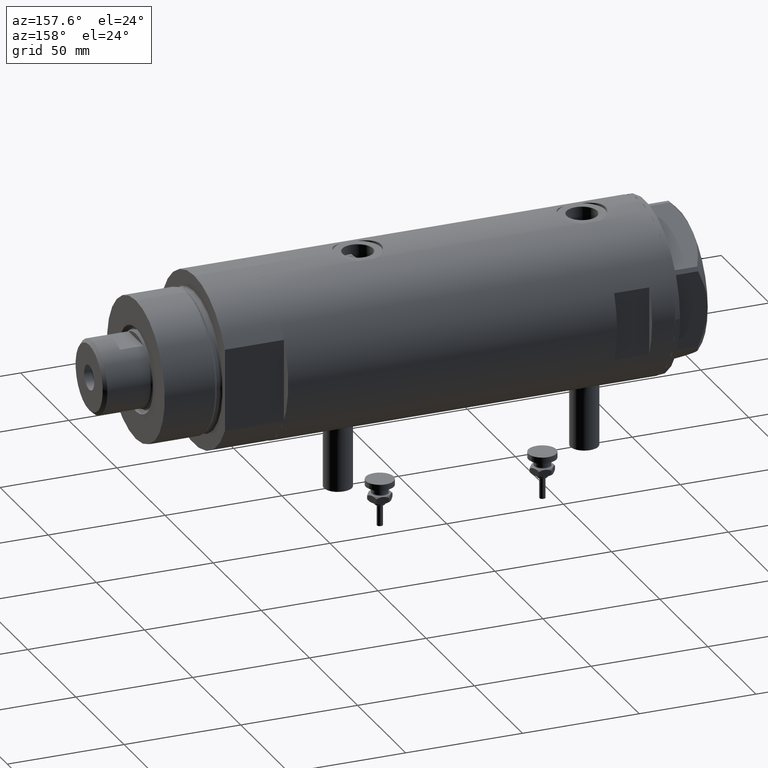
[diagram: clean part render]
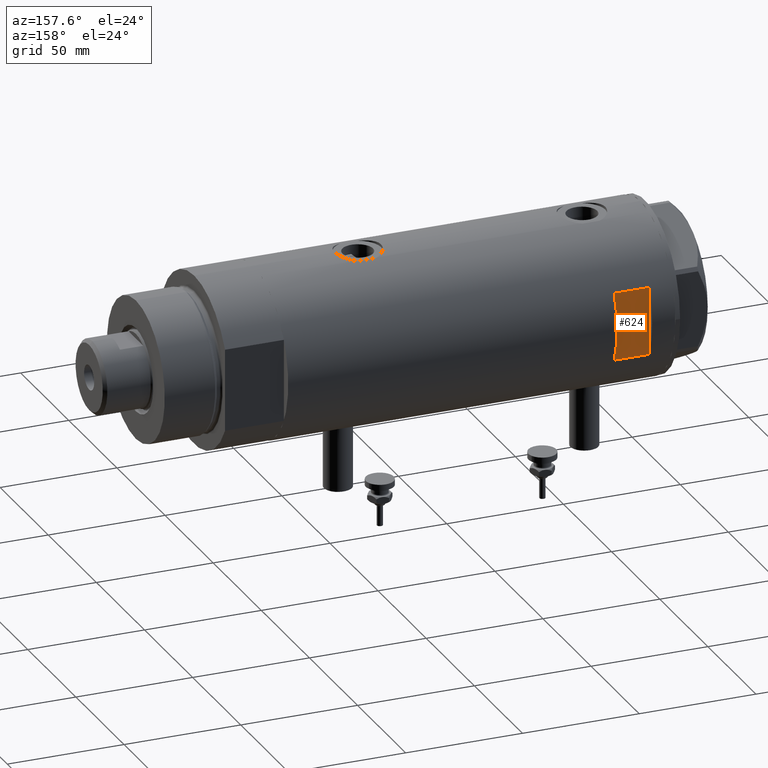
[diagram: same view with one face highlighted and labeled with its STEP entity id]
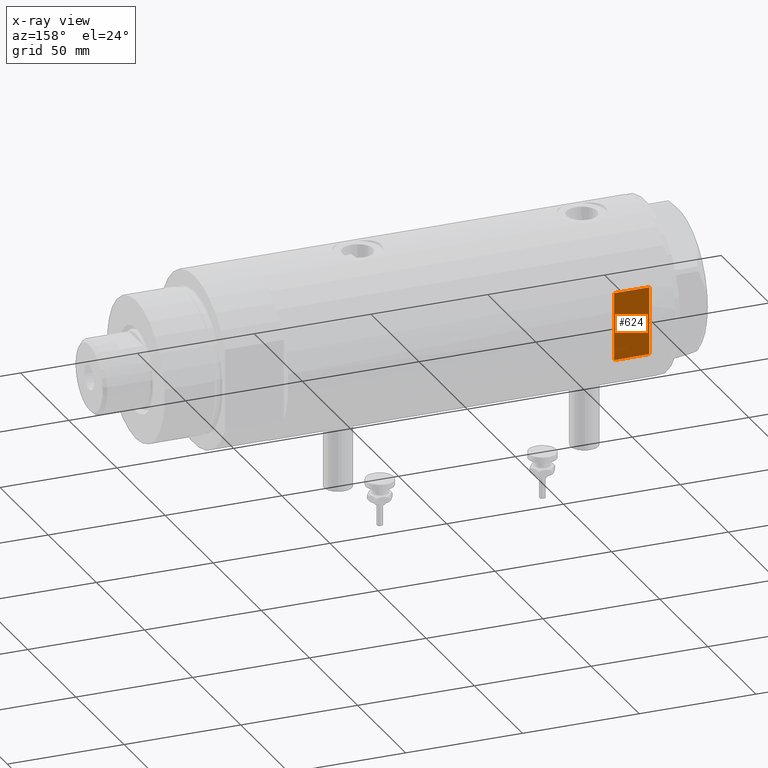
[diagram: x-ray of the same camera — body ghosted, the highlighted face saturated]
A machine part, auxiliary view. The second image highlights one B-rep face of the part: STEP entity #624.
The next image is the same camera in x-ray: the body ghosted, the highlighted face saturated — about 0% of this face is hidden behind the body in this view.
In plain terms, the highlighted planar face has unit normal (0, -1, -0).
Its self-contained STEP definition (entity closure, byte-faithful):
#513 = EDGE_CURVE ( 'NONE', #5795, #2956, #4915, .T. ) ;
#619 = EDGE_LOOP ( 'NONE', ( #5361, #3059, #2421, #1788 ) ) ;
#624 = ADVANCED_FACE ( 'NONE', ( #3673 ), #3617, .F. ) ;
#724 = LINE ( 'NONE', #2543, #5213 ) ;
#734 = EDGE_CURVE ( 'NONE', #1887, #2956, #5035, .T. ) ;
#1098 = CARTESIAN_POINT ( 'NONE',  ( -14.49137674618942917, 33.50000000000000000, 57.89999999999999147 ) ) ;
#1293 = VECTOR ( 'NONE', #4104, 1000.000000000000000 ) ;
#1445 = CARTESIAN_POINT ( 'NONE',  ( 14.49137674618942739, 33.50000000000000000, 72.89999999999999147 ) ) ;
#1788 = ORIENTED_EDGE ( 'NONE', *, *, #5546, .T. ) ;
#1840 = DIRECTION ( 'NONE',  ( 0.000000000000000000, 0.000000000000000000, -1.000000000000000000 ) ) ;
#1887 = VERTEX_POINT ( 'NONE', #1098 ) ;
#2049 = CARTESIAN_POINT ( 'NONE',  ( 14.49137674618942739, 33.50000000000000000, -82.90000000000000568 ) ) ;
#2072 = DIRECTION ( 'NONE',  ( -0.000000000000000000, -0.000000000000000000, -1.000000000000000000 ) ) ;
#2221 = CARTESIAN_POINT ( 'NONE',  ( -36.50000000000000000, 33.50000000000000000, 72.89999999999999147 ) ) ;
#2253 = DIRECTION ( 'NONE',  ( 1.000000000000000000, -0.000000000000000000, -0.000000000000000000 ) ) ;
#2272 = CARTESIAN_POINT ( 'NONE',  ( -36.50000000000000000, 33.50000000000000000, 72.89999999999999147 ) ) ;
#2421 = ORIENTED_EDGE ( 'NONE', *, *, #4052, .T. ) ;
#2543 = CARTESIAN_POINT ( 'NONE',  ( -14.49137674618942739, 33.50000000000000000, -82.90000000000000568 ) ) ;
#2739 = CARTESIAN_POINT ( 'NONE',  ( -14.49137674618942739, 33.50000000000000000, 72.89999999999999147 ) ) ;
#2956 = VERTEX_POINT ( 'NONE', #3150 ) ;
#3059 = ORIENTED_EDGE ( 'NONE', *, *, #734, .F. ) ;
#3068 = VECTOR ( 'NONE', #2072, 1000.000000000000000 ) ;
#3150 = CARTESIAN_POINT ( 'NONE',  ( 14.49137674618942917, 33.50000000000000000, 57.89999999999999147 ) ) ;
#3617 = PLANE ( 'NONE',  #4323 ) ;
#3673 = FACE_OUTER_BOUND ( 'NONE', #619, .T. ) ;
#4052 = EDGE_CURVE ( 'NONE', #1887, #5555, #724, .T. ) ;
#4104 = DIRECTION ( 'NONE',  ( 1.000000000000000000, -0.000000000000000000, -0.000000000000000000 ) ) ;
#4323 = AXIS2_PLACEMENT_3D ( 'NONE', #2221, #5940, #1840 ) ;
#4372 = DIRECTION ( 'NONE',  ( 0.000000000000000000, 0.000000000000000000, 1.000000000000000000 ) ) ;
#4915 = LINE ( 'NONE', #2049, #3068 ) ;
#4965 = LINE ( 'NONE', #2272, #1293 ) ;
#5035 = LINE ( 'NONE', #5061, #5294 ) ;
#5061 = CARTESIAN_POINT ( 'NONE',  ( -36.50000000000000000, 33.50000000000000000, 57.89999999999999147 ) ) ;
#5213 = VECTOR ( 'NONE', #4372, 1000.000000000000000 ) ;
#5294 = VECTOR ( 'NONE', #2253, 1000.000000000000000 ) ;
#5361 = ORIENTED_EDGE ( 'NONE', *, *, #513, .T. ) ;
#5546 = EDGE_CURVE ( 'NONE', #5555, #5795, #4965, .T. ) ;
#5555 = VERTEX_POINT ( 'NONE', #2739 ) ;
#5795 = VERTEX_POINT ( 'NONE', #1445 ) ;
#5940 = DIRECTION ( 'NONE',  ( 0.000000000000000000, -1.000000000000000000, -0.000000000000000000 ) ) ;